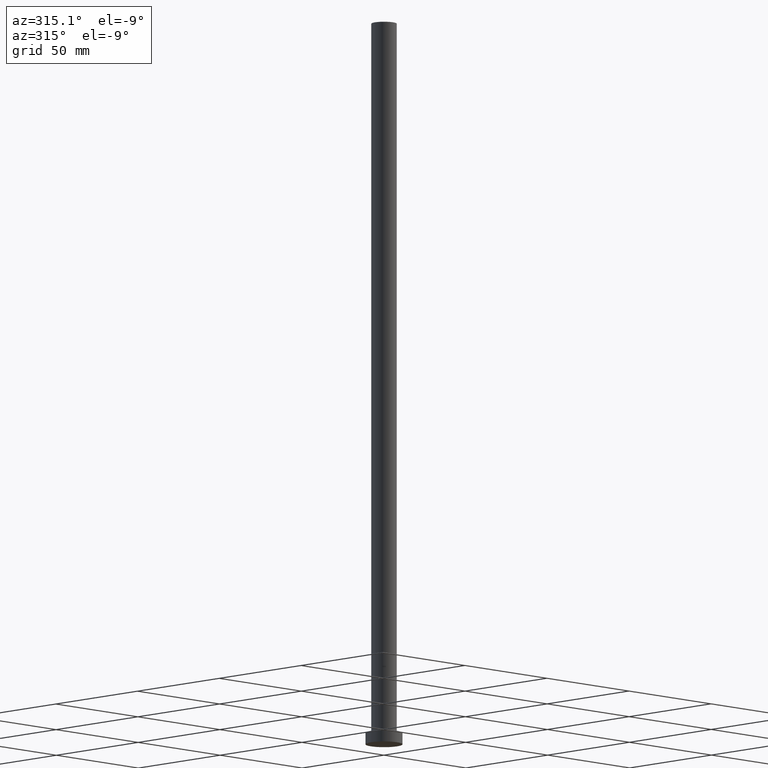
[diagram: clean part render]
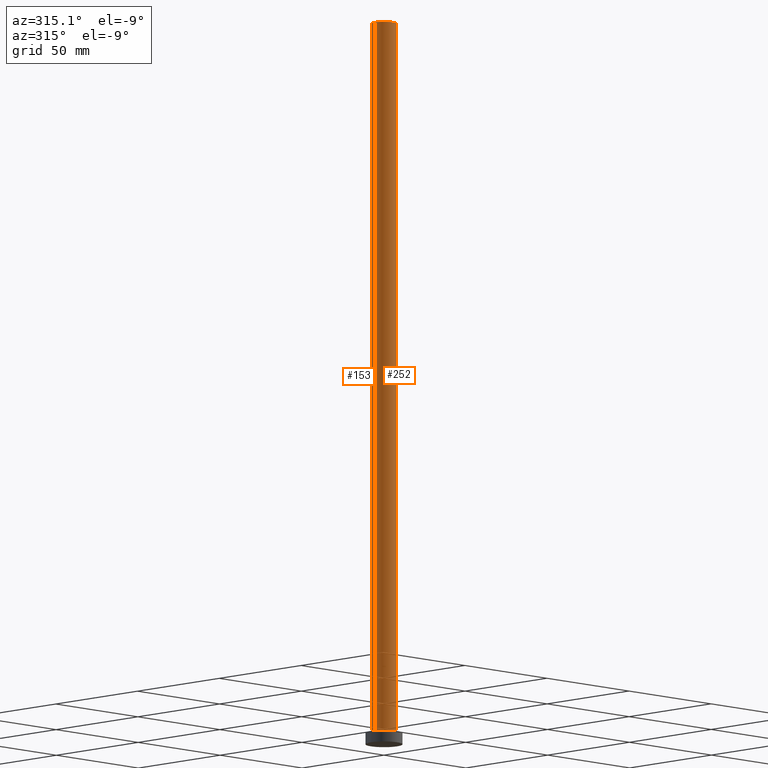
[diagram: same view with one multi-face feature highlighted, each face labeled with its STEP entity id]
A machine part, auxiliary view. The highlighted faces form ONE feature: a constant-radius fillet chain: 2 tangent blend faces with common blend radius 5.5 mm. The faces share edges in the B-rep.
Their STEP definitions:
[1] entity #153 (Cylinder):
#3 = DIRECTION ( 'NONE',  ( -0.000000000000000000, -0.000000000000000000, -1.000000000000000000 ) ) ;
#4 = VECTOR ( 'NONE', #3, 1000.000000000000000 ) ;
#7 = DIRECTION ( 'NONE',  ( -0.000000000000000000, -0.000000000000000000, -1.000000000000000000 ) ) ;
#13 = EDGE_CURVE ( 'NONE', #27, #154, #65, .T. ) ;
#21 = ORIENTED_EDGE ( 'NONE', *, *, #214, .F. ) ;
#27 = VERTEX_POINT ( 'NONE', #62 ) ;
#29 = AXIS2_PLACEMENT_3D ( 'NONE', #102, #7, #48 ) ;
#30 = DIRECTION ( 'NONE',  ( 0.000000000000000000, 0.000000000000000000, 1.000000000000000000 ) ) ;
#31 = FACE_OUTER_BOUND ( 'NONE', #73, .T. ) ;
#32 = DIRECTION ( 'NONE',  ( 1.000000000000000000, 0.000000000000000000, 0.000000000000000000 ) ) ;
#36 = VERTEX_POINT ( 'NONE', #221 ) ;
#44 = CARTESIAN_POINT ( 'NONE',  ( -5.500000000000000000, 0.000000000000000000, 315.0000000000000000 ) ) ;
#45 = AXIS2_PLACEMENT_3D ( 'NONE', #185, #30, #50 ) ;
#46 = VECTOR ( 'NONE', #246, 1000.000000000000000 ) ;
#48 = DIRECTION ( 'NONE',  ( -1.000000000000000000, 0.000000000000000000, 0.000000000000000000 ) ) ;
#50 = DIRECTION ( 'NONE',  ( 1.000000000000000000, 0.000000000000000000, 0.000000000000000000 ) ) ;
#54 = ORIENTED_EDGE ( 'NONE', *, *, #198, .T. ) ;
#58 = VERTEX_POINT ( 'NONE', #44 ) ;
#62 = CARTESIAN_POINT ( 'NONE',  ( 5.500000000000000000, 6.735557395310442023E-16, 315.0000000000000000 ) ) ;
#65 = LINE ( 'NONE', #158, #4 ) ;
#66 = CARTESIAN_POINT ( 'NONE',  ( 5.500000000000000000, 6.735557395310442023E-16, 5.000000000000000000 ) ) ;
#72 = CIRCLE ( 'NONE', #220, 5.500000000000000000 ) ;
#73 = EDGE_LOOP ( 'NONE', ( #21, #176, #54, #199 ) ) ;
#86 = CARTESIAN_POINT ( 'NONE',  ( -5.500000000000000000, 0.000000000000000000, 315.0000000000000000 ) ) ;
#102 = CARTESIAN_POINT ( 'NONE',  ( 0.000000000000000000, 0.000000000000000000, 315.0000000000000000 ) ) ;
#120 = CIRCLE ( 'NONE', #45, 5.500000000000000000 ) ;
#153 = ADVANCED_FACE ( 'NONE', ( #31 ), #206, .T. ) ;
#154 = VERTEX_POINT ( 'NONE', #66 ) ;
#158 = CARTESIAN_POINT ( 'NONE',  ( 5.500000000000000000, 6.735557395310442023E-16, 315.0000000000000000 ) ) ;
#176 = ORIENTED_EDGE ( 'NONE', *, *, #13, .T. ) ;
#185 = CARTESIAN_POINT ( 'NONE',  ( 0.000000000000000000, 0.000000000000000000, 315.0000000000000000 ) ) ;
#189 = LINE ( 'NONE', #86, #46 ) ;
#190 = CARTESIAN_POINT ( 'NONE',  ( 0.000000000000000000, 0.000000000000000000, 5.000000000000000000 ) ) ;
#198 = EDGE_CURVE ( 'NONE', #154, #36, #72, .T. ) ;
#199 = ORIENTED_EDGE ( 'NONE', *, *, #247, .F. ) ;
#206 = CYLINDRICAL_SURFACE ( 'NONE', #29, 5.500000000000000000 ) ;
#214 = EDGE_CURVE ( 'NONE', #27, #58, #120, .T. ) ;
#220 = AXIS2_PLACEMENT_3D ( 'NONE', #190, #229, #32 ) ;
#221 = CARTESIAN_POINT ( 'NONE',  ( -5.500000000000000000, 0.000000000000000000, 5.000000000000000000 ) ) ;
#229 = DIRECTION ( 'NONE',  ( 0.000000000000000000, 0.000000000000000000, 1.000000000000000000 ) ) ;
#246 = DIRECTION ( 'NONE',  ( -0.000000000000000000, -0.000000000000000000, -1.000000000000000000 ) ) ;
#247 = EDGE_CURVE ( 'NONE', #58, #36, #189, .T. ) ;
[2] entity #252 (Cylinder):
#3 = DIRECTION ( 'NONE',  ( -0.000000000000000000, -0.000000000000000000, -1.000000000000000000 ) ) ;
#4 = VECTOR ( 'NONE', #3, 1000.000000000000000 ) ;
#9 = CIRCLE ( 'NONE', #147, 5.500000000000000000 ) ;
#13 = EDGE_CURVE ( 'NONE', #27, #154, #65, .T. ) ;
#14 = CYLINDRICAL_SURFACE ( 'NONE', #223, 5.500000000000000000 ) ;
#27 = VERTEX_POINT ( 'NONE', #62 ) ;
#36 = VERTEX_POINT ( 'NONE', #221 ) ;
#39 = ORIENTED_EDGE ( 'NONE', *, *, #13, .F. ) ;
#44 = CARTESIAN_POINT ( 'NONE',  ( -5.500000000000000000, 0.000000000000000000, 315.0000000000000000 ) ) ;
#46 = VECTOR ( 'NONE', #246, 1000.000000000000000 ) ;
#52 = FACE_OUTER_BOUND ( 'NONE', #253, .T. ) ;
#56 = ORIENTED_EDGE ( 'NONE', *, *, #240, .F. ) ;
#58 = VERTEX_POINT ( 'NONE', #44 ) ;
#62 = CARTESIAN_POINT ( 'NONE',  ( 5.500000000000000000, 6.735557395310442023E-16, 315.0000000000000000 ) ) ;
#63 = CARTESIAN_POINT ( 'NONE',  ( 0.000000000000000000, 0.000000000000000000, 5.000000000000000000 ) ) ;
#65 = LINE ( 'NONE', #158, #4 ) ;
#66 = CARTESIAN_POINT ( 'NONE',  ( 5.500000000000000000, 6.735557395310442023E-16, 5.000000000000000000 ) ) ;
#84 = EDGE_CURVE ( 'NONE', #36, #154, #9, .T. ) ;
#86 = CARTESIAN_POINT ( 'NONE',  ( -5.500000000000000000, 0.000000000000000000, 315.0000000000000000 ) ) ;
#135 = DIRECTION ( 'NONE',  ( 0.000000000000000000, 0.000000000000000000, 1.000000000000000000 ) ) ;
#139 = DIRECTION ( 'NONE',  ( 1.000000000000000000, 0.000000000000000000, 0.000000000000000000 ) ) ;
#143 = DIRECTION ( 'NONE',  ( -1.000000000000000000, 0.000000000000000000, 0.000000000000000000 ) ) ;
#147 = AXIS2_PLACEMENT_3D ( 'NONE', #63, #135, #222 ) ;
#154 = VERTEX_POINT ( 'NONE', #66 ) ;
#158 = CARTESIAN_POINT ( 'NONE',  ( 5.500000000000000000, 6.735557395310442023E-16, 315.0000000000000000 ) ) ;
#165 = CARTESIAN_POINT ( 'NONE',  ( 0.000000000000000000, 0.000000000000000000, 315.0000000000000000 ) ) ;
#168 = CARTESIAN_POINT ( 'NONE',  ( 0.000000000000000000, 0.000000000000000000, 315.0000000000000000 ) ) ;
#170 = CIRCLE ( 'NONE', #182, 5.500000000000000000 ) ;
#174 = ORIENTED_EDGE ( 'NONE', *, *, #84, .T. ) ;
#175 = ORIENTED_EDGE ( 'NONE', *, *, #247, .T. ) ;
#182 = AXIS2_PLACEMENT_3D ( 'NONE', #165, #245, #139 ) ;
#189 = LINE ( 'NONE', #86, #46 ) ;
#221 = CARTESIAN_POINT ( 'NONE',  ( -5.500000000000000000, 0.000000000000000000, 5.000000000000000000 ) ) ;
#222 = DIRECTION ( 'NONE',  ( 1.000000000000000000, 0.000000000000000000, 0.000000000000000000 ) ) ;
#223 = AXIS2_PLACEMENT_3D ( 'NONE', #168, #248, #143 ) ;
#240 = EDGE_CURVE ( 'NONE', #58, #27, #170, .T. ) ;
#245 = DIRECTION ( 'NONE',  ( 0.000000000000000000, 0.000000000000000000, 1.000000000000000000 ) ) ;
#246 = DIRECTION ( 'NONE',  ( -0.000000000000000000, -0.000000000000000000, -1.000000000000000000 ) ) ;
#247 = EDGE_CURVE ( 'NONE', #58, #36, #189, .T. ) ;
#248 = DIRECTION ( 'NONE',  ( -0.000000000000000000, -0.000000000000000000, -1.000000000000000000 ) ) ;
#252 = ADVANCED_FACE ( 'NONE', ( #52 ), #14, .T. ) ;
#253 = EDGE_LOOP ( 'NONE', ( #39, #56, #175, #174 ) ) ;